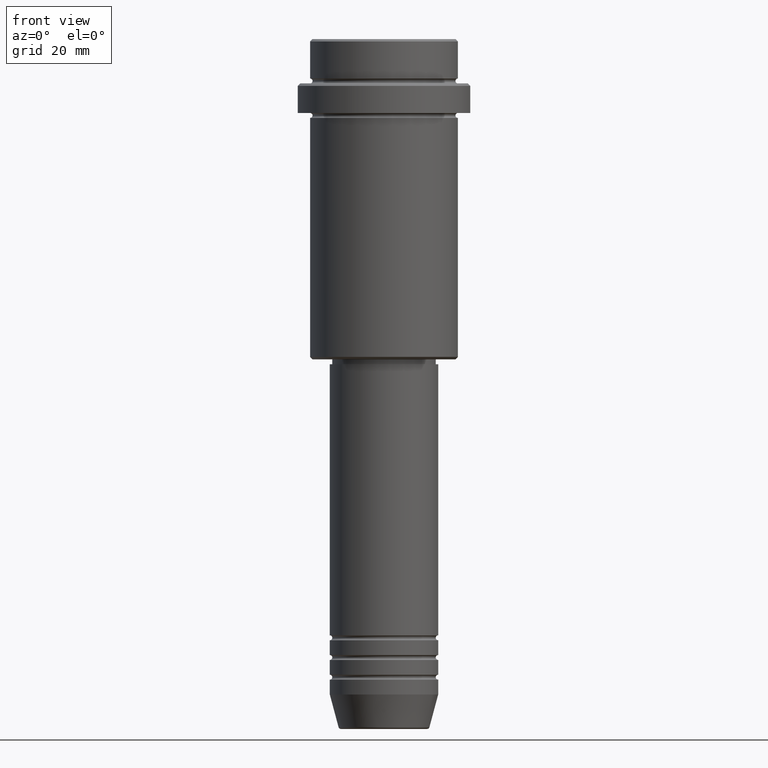
[diagram: clean part render]
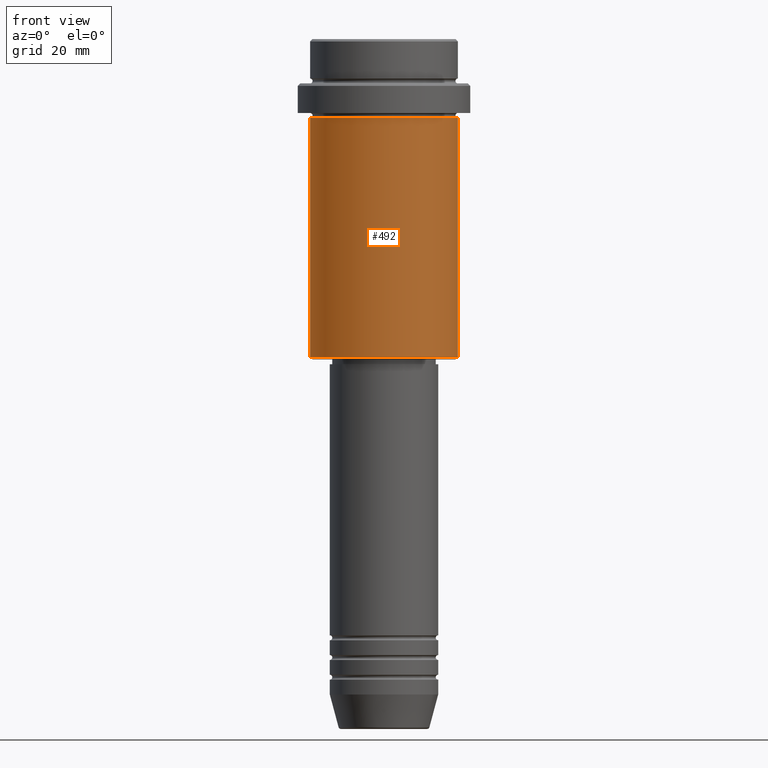
[diagram: same view with one face highlighted and labeled with its STEP entity id]
A machine part, front view. The second image highlights one B-rep face of the part: STEP entity #492.
In plain terms, the highlighted cylindrical surface (partial cylindrical patch) has radius 15 mm, axis along (-0, -0, 1).
Its self-contained STEP definition (entity closure, byte-faithful):
#14 = VERTEX_POINT ( 'NONE', #1301 ) ;
#36 = AXIS2_PLACEMENT_3D ( 'NONE', #1292, #282, #854 ) ;
#38 = EDGE_CURVE ( 'NONE', #14, #818, #793, .T. ) ;
#68 = ORIENTED_EDGE ( 'NONE', *, *, #1417, .F. ) ;
#121 = CYLINDRICAL_SURFACE ( 'NONE', #754, 15.00000000000000000 ) ;
#165 = VERTEX_POINT ( 'NONE', #639 ) ;
#248 = DIRECTION ( 'NONE',  ( -0.000000000000000000, -0.000000000000000000, 1.000000000000000000 ) ) ;
#282 = DIRECTION ( 'NONE',  ( -0.000000000000000000, -0.000000000000000000, 1.000000000000000000 ) ) ;
#294 = CARTESIAN_POINT ( 'NONE',  ( 15.00000000000000000, 0.000000000000000000, -64.50000000000001421 ) ) ;
#305 = DIRECTION ( 'NONE',  ( 1.000000000000000000, 0.000000000000000000, 0.000000000000000000 ) ) ;
#324 = DIRECTION ( 'NONE',  ( -1.000000000000000000, 0.000000000000000000, 0.000000000000000000 ) ) ;
#393 = AXIS2_PLACEMENT_3D ( 'NONE', #852, #425, #324 ) ;
#404 = EDGE_CURVE ( 'NONE', #818, #834, #807, .T. ) ;
#425 = DIRECTION ( 'NONE',  ( -0.000000000000000000, -0.000000000000000000, 1.000000000000000000 ) ) ;
#442 = CIRCLE ( 'NONE', #36, 15.00000000000000178 ) ;
#450 = DIRECTION ( 'NONE',  ( -0.000000000000000000, -0.000000000000000000, 1.000000000000000000 ) ) ;
#459 = ORIENTED_EDGE ( 'NONE', *, *, #1109, .F. ) ;
#492 = ADVANCED_FACE ( 'NONE', ( #843 ), #121, .T. ) ;
#588 = DIRECTION ( 'NONE',  ( -0.000000000000000000, -0.000000000000000000, 1.000000000000000000 ) ) ;
#639 = CARTESIAN_POINT ( 'NONE',  ( -15.00000000000000355, 1.836970198721029983E-15, -16.00000000000000000 ) ) ;
#673 = CARTESIAN_POINT ( 'NONE',  ( 15.00000000000000000, 0.000000000000000000, 0.000000000000000000 ) ) ;
#754 = AXIS2_PLACEMENT_3D ( 'NONE', #1374, #450, #305 ) ;
#793 = CIRCLE ( 'NONE', #393, 15.00000000000000000 ) ;
#797 = LINE ( 'NONE', #1234, #1094 ) ;
#807 = LINE ( 'NONE', #673, #1001 ) ;
#818 = VERTEX_POINT ( 'NONE', #294 ) ;
#834 = VERTEX_POINT ( 'NONE', #877 ) ;
#843 = FACE_OUTER_BOUND ( 'NONE', #1375, .T. ) ;
#852 = CARTESIAN_POINT ( 'NONE',  ( 0.000000000000000000, 0.000000000000000000, -64.50000000000001421 ) ) ;
#854 = DIRECTION ( 'NONE',  ( 1.000000000000000000, 0.000000000000000000, 0.000000000000000000 ) ) ;
#877 = CARTESIAN_POINT ( 'NONE',  ( 15.00000000000000178, 0.000000000000000000, -16.00000000000000000 ) ) ;
#1001 = VECTOR ( 'NONE', #588, 1000.000000000000000 ) ;
#1004 = ORIENTED_EDGE ( 'NONE', *, *, #38, .T. ) ;
#1094 = VECTOR ( 'NONE', #248, 1000.000000000000000 ) ;
#1109 = EDGE_CURVE ( 'NONE', #165, #834, #442, .T. ) ;
#1114 = ORIENTED_EDGE ( 'NONE', *, *, #404, .T. ) ;
#1234 = CARTESIAN_POINT ( 'NONE',  ( -15.00000000000000000, 1.836970198721029589E-15, 0.000000000000000000 ) ) ;
#1292 = CARTESIAN_POINT ( 'NONE',  ( 0.000000000000000000, 0.000000000000000000, -16.00000000000000000 ) ) ;
#1301 = CARTESIAN_POINT ( 'NONE',  ( -15.00000000000000000, 1.836970198721029589E-15, -64.50000000000001421 ) ) ;
#1374 = CARTESIAN_POINT ( 'NONE',  ( 0.000000000000000000, 0.000000000000000000, 0.000000000000000000 ) ) ;
#1375 = EDGE_LOOP ( 'NONE', ( #68, #1004, #1114, #459 ) ) ;
#1417 = EDGE_CURVE ( 'NONE', #14, #165, #797, .T. ) ;